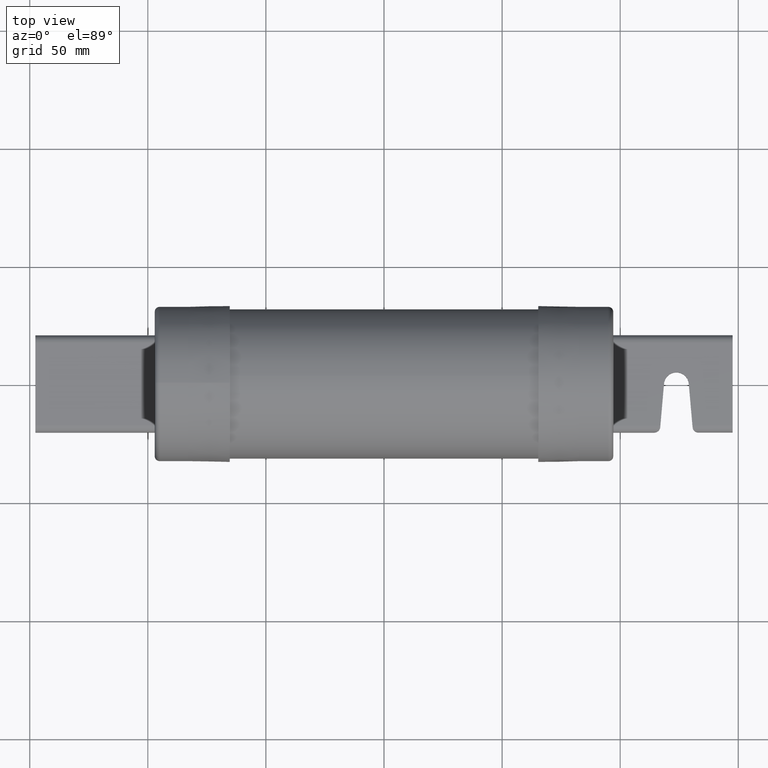
[diagram: clean part render]
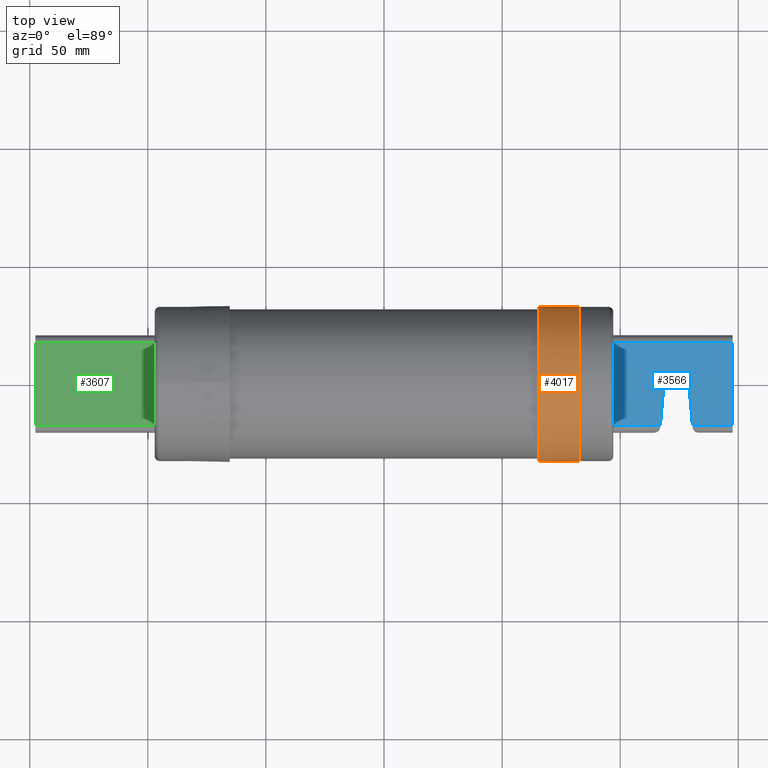
[diagram: same view with three faces highlighted in distinct colors, each labeled with its STEP entity id]
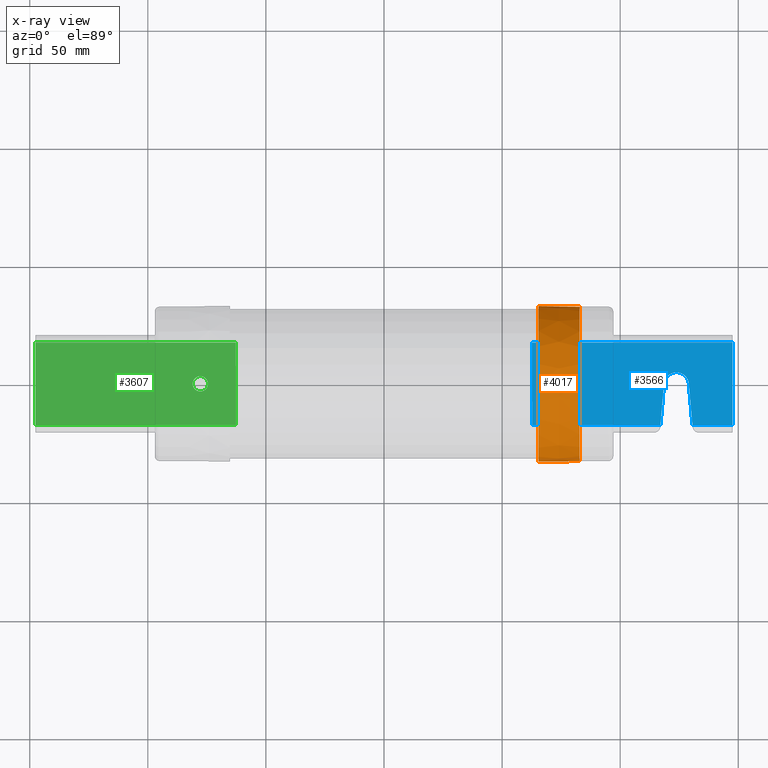
[diagram: x-ray of the same camera — body ghosted, the three highlighted faces saturated]
A machine part, top view with three faces highlighted in distinct colors.
The next image is the same camera in x-ray (body ghosted, the three faces saturated) — at least one of them is partly hidden behind the body in this view.
Their STEP definitions:

[orange] entity #4017 — the highlighted conical surface has half-angle 1.041 deg.
#166 = EDGE_CURVE ( 'NONE', #3166, #3166, #437, .T. ) ;
#247 = CARTESIAN_POINT ( 'NONE',  ( 2.571726816238730800, -8.332876084833582000E-017, -1.304993396181809200 ) ) ;
#257 = ORIENTED_EDGE ( 'NONE', *, *, #4000, .F. ) ;
#352 = DIRECTION ( 'NONE',  ( 0.0000000000000000000, -1.231653667943533000E-016, -1.000000000000000000 ) ) ;
#437 = CIRCLE ( 'NONE', #3404, 1.304993396181809200 ) ;
#585 = EDGE_LOOP ( 'NONE', ( #257 ) ) ;
#704 = EDGE_LOOP ( 'NONE', ( #3730 ) ) ;
#1048 = DIRECTION ( 'NONE',  ( 0.0000000000000000000, -1.231653667943533000E-016, -1.000000000000000000 ) ) ;
#1078 = DIRECTION ( 'NONE',  ( 0.0000000000000000000, 1.231653667943533000E-016, 1.000000000000000000 ) ) ;
#1404 = DIRECTION ( 'NONE',  ( 1.000000000000000000, 2.035898835337764500E-016, -1.361673625696616300E-016 ) ) ;
#1733 = CARTESIAN_POINT ( 'NONE',  ( 2.571726816238730800, 7.740122945660551400E-017, -5.176839385050483000E-017 ) ) ;
#2317 = VERTEX_POINT ( 'NONE', #2453 ) ;
#2416 = DIRECTION ( 'NONE',  ( 1.000000000000000000, 2.035898835337764500E-016, -1.361673625696616300E-016 ) ) ;
#2453 = CARTESIAN_POINT ( 'NONE',  ( 3.258636591880634400, 5.805665405351695700E-017, -1.292509905727287500 ) ) ;
#2494 = CIRCLE ( 'NONE', #4297, 1.292509905727287100 ) ;
#2599 = FACE_BOUND ( 'NONE', #585, .T. ) ;
#2898 = CONICAL_SURFACE ( 'NONE', #4284, 1.304993396181809200, 0.01817140598479098300 ) ;
#3166 = VERTEX_POINT ( 'NONE', #247 ) ;
#3404 = AXIS2_PLACEMENT_3D ( 'NONE', #1733, #1404, #1048 ) ;
#3517 = CARTESIAN_POINT ( 'NONE',  ( 2.571726816238730800, 7.740122945660551400E-017, -5.176839385050483000E-017 ) ) ;
#3570 = FACE_OUTER_BOUND ( 'NONE', #704, .T. ) ;
#3730 = ORIENTED_EDGE ( 'NONE', *, *, #166, .T. ) ;
#3861 = DIRECTION ( 'NONE',  ( -1.000000000000000000, -2.035898835337764500E-016, 1.361673625696616300E-016 ) ) ;
#4000 = EDGE_CURVE ( 'NONE', #2317, #2317, #2494, .T. ) ;
#4017 = ADVANCED_FACE ( 'NONE', ( #2599, #3570 ), #2898, .T. ) ;
#4284 = AXIS2_PLACEMENT_3D ( 'NONE', #3517, #3861, #1078 ) ;
#4297 = AXIS2_PLACEMENT_3D ( 'NONE', #4556, #2416, #352 ) ;
#4556 = CARTESIAN_POINT ( 'NONE',  ( 3.258636591880634400, 2.172491106777532700E-016, -1.453030863229809300E-016 ) ) ;

[blue] entity #3566 — the highlighted planar face has unit normal (-0, 0, -1).
#62 = DIRECTION ( 'NONE',  ( 0.0001632919660351004400, -0.9999999866678668200, -1.201107293654487800E-016 ) ) ;
#159 = EDGE_CURVE ( 'NONE', #493, #902, #983, .T. ) ;
#195 = VECTOR ( 'NONE', #62, 39.37007874015748100 ) ;
#206 = ORIENTED_EDGE ( 'NONE', *, *, #1688, .F. ) ;
#243 = DIRECTION ( 'NONE',  ( -2.391543916886110600E-017, 1.201068257676484800E-016, -1.000000000000000000 ) ) ;
#250 = EDGE_LOOP ( 'NONE', ( #3068, #4549, #206, #1319, #2597, #2192, #4312, #2467 ) ) ;
#363 = CARTESIAN_POINT ( 'NONE',  ( 4.139887640755327800, 0.6881760195668792400, 0.1249999999999996800 ) ) ;
#401 = CIRCLE ( 'NONE', #4170, 0.2079999999999999600 ) ;
#493 = VERTEX_POINT ( 'NONE', #2766 ) ;
#511 = CARTESIAN_POINT ( 'NONE',  ( 5.082002422448581100, -0.01467015002862652600, 0.1249999999999995700 ) ) ;
#513 = EDGE_CURVE ( 'NONE', #1498, #902, #3027, .T. ) ;
#599 = CARTESIAN_POINT ( 'NONE',  ( 4.139999903981976800, 0.0006760287327203378100, 0.1249999999999995800 ) ) ;
#718 = DIRECTION ( 'NONE',  ( -0.9999999866678668200, -0.0001632919660351868500, 2.389582637029529500E-017 ) ) ;
#787 = CARTESIAN_POINT ( 'NONE',  ( 3.062020819725668600, -0.1274999983001525200, 0.1249999999999995400 ) ) ;
#827 = EDGE_LOOP ( 'NONE', ( #1748 ) ) ;
#870 = EDGE_CURVE ( 'NONE', #2679, #3070, #1006, .T. ) ;
#902 = VERTEX_POINT ( 'NONE', #991 ) ;
#940 = DIRECTION ( 'NONE',  ( 0.0001632919660352685500, -0.9999999866678668200, -1.201107293654487800E-016 ) ) ;
#966 = CARTESIAN_POINT ( 'NONE',  ( 3.061999999999999400, 3.490842870810242500E-016, 0.1249999999999995600 ) ) ;
#968 = PLANE ( 'NONE',  #2769 ) ;
#983 = LINE ( 'NONE', #363, #3272 ) ;
#991 = CARTESIAN_POINT ( 'NONE',  ( 2.467887663046654600, 0.6879029953996683700, 0.1249999999999997100 ) ) ;
#1006 = LINE ( 'NONE', #4483, #4033 ) ;
#1009 = CARTESIAN_POINT ( 'NONE',  ( 5.812112161246496100, -0.6866509379328941100, 0.1249999999999994700 ) ) ;
#1121 = EDGE_CURVE ( 'NONE', #2913, #2913, #3124, .T. ) ;
#1180 = CARTESIAN_POINT ( 'NONE',  ( 5.082002422448581100, -0.01467015002862648800, 0.1249999999999995700 ) ) ;
#1227 = DIRECTION ( 'NONE',  ( 0.08699307099488050300, 0.9962089166429296500, 1.175710132819204500E-016 ) ) ;
#1303 = EDGE_CURVE ( 'NONE', #1971, #3379, #401, .T. ) ;
#1319 = ORIENTED_EDGE ( 'NONE', *, *, #159, .T. ) ;
#1362 = FACE_OUTER_BOUND ( 'NONE', #250, .T. ) ;
#1498 = VERTEX_POINT ( 'NONE', #4315 ) ;
#1688 = EDGE_CURVE ( 'NONE', #493, #3070, #3326, .T. ) ;
#1718 = LINE ( 'NONE', #3883, #3695 ) ;
#1748 = ORIENTED_EDGE ( 'NONE', *, *, #1121, .T. ) ;
#1798 = EDGE_CURVE ( 'NONE', #3659, #1971, #3219, .T. ) ;
#1971 = VERTEX_POINT ( 'NONE', #4393 ) ;
#2192 = ORIENTED_EDGE ( 'NONE', *, *, #3061, .T. ) ;
#2419 = CARTESIAN_POINT ( 'NONE',  ( 5.140913300950782800, -0.6867605393158539000, 0.1249999999999994900 ) ) ;
#2467 = ORIENTED_EDGE ( 'NONE', *, *, #1303, .T. ) ;
#2597 = ORIENTED_EDGE ( 'NONE', *, *, #513, .F. ) ;
#2679 = VERTEX_POINT ( 'NONE', #2419 ) ;
#2736 = LINE ( 'NONE', #511, #2742 ) ;
#2742 = VECTOR ( 'NONE', #2854, 39.37007874015747400 ) ;
#2766 = CARTESIAN_POINT ( 'NONE',  ( 5.811887618464001400, 0.6884490437340899900, 0.1249999999999996400 ) ) ;
#2769 = AXIS2_PLACEMENT_3D ( 'NONE', #599, #243, #940 ) ;
#2854 = DIRECTION ( 'NONE',  ( 0.08731841217649165300, -0.9961804529777607000, -1.217363302736648000E-016 ) ) ;
#2913 = VERTEX_POINT ( 'NONE', #787 ) ;
#3027 = LINE ( 'NONE', #4107, #4396 ) ;
#3061 = EDGE_CURVE ( 'NONE', #1498, #3659, #1718, .T. ) ;
#3068 = ORIENTED_EDGE ( 'NONE', *, *, #3251, .T. ) ;
#3070 = VERTEX_POINT ( 'NONE', #1009 ) ;
#3124 = CIRCLE ( 'NONE', #3210, 0.1274999999999998400 ) ;
#3195 = DIRECTION ( 'NONE',  ( 0.9999999866678668200, 0.0001632919660351460100, -2.389582637029530400E-017 ) ) ;
#3210 = AXIS2_PLACEMENT_3D ( 'NONE', #966, #4136, #4504 ) ;
#3219 = LINE ( 'NONE', #4383, #3815 ) ;
#3251 = EDGE_CURVE ( 'NONE', #3379, #2679, #2736, .T. ) ;
#3272 = VECTOR ( 'NONE', #718, 39.37007874015748100 ) ;
#3319 = DIRECTION ( 'NONE',  ( -0.0001632919660352685500, 0.9999999866678668200, 1.201107293654487800E-016 ) ) ;
#3326 = LINE ( 'NONE', #4008, #195 ) ;
#3379 = VERTEX_POINT ( 'NONE', #1180 ) ;
#3566 = ADVANCED_FACE ( 'NONE', ( #4173, #1362 ), #968, .F. ) ;
#3649 = DIRECTION ( 'NONE',  ( 0.0001632919660340611500, -0.9999999866678669400, -8.208677865577715400E-017 ) ) ;
#3659 = VERTEX_POINT ( 'NONE', #4389 ) ;
#3695 = VECTOR ( 'NONE', #3195, 39.37007874015748100 ) ;
#3815 = VECTOR ( 'NONE', #1227, 39.37007874015748100 ) ;
#3883 = CARTESIAN_POINT ( 'NONE',  ( 4.140112183537823400, -0.6869239621001050900, 0.1249999999999995000 ) ) ;
#3999 = DIRECTION ( 'NONE',  ( -2.391543916886110300E-017, 1.201068257676469800E-016, -1.000000000000000000 ) ) ;
#4008 = CARTESIAN_POINT ( 'NONE',  ( 5.812132556413054400, -0.8115509362677106900, 0.1249999999999994600 ) ) ;
#4033 = VECTOR ( 'NONE', #4129, 39.37007874015748100 ) ;
#4107 = CARTESIAN_POINT ( 'NONE',  ( 2.468132600995707600, -0.8120969846021323100, 0.1249999999999995100 ) ) ;
#4129 = DIRECTION ( 'NONE',  ( 0.9999999866678668200, 0.0001632919660351460100, -2.389582637029530400E-017 ) ) ;
#4136 = DIRECTION ( 'NONE',  ( -2.391543916886110300E-017, 1.201068257676469800E-016, -1.000000000000000000 ) ) ;
#4170 = AXIS2_PLACEMENT_3D ( 'NONE', #4356, #3999, #3649 ) ;
#4173 = FACE_BOUND ( 'NONE', #827, .T. ) ;
#4312 = ORIENTED_EDGE ( 'NONE', *, *, #1798, .T. ) ;
#4315 = CARTESIAN_POINT ( 'NONE',  ( 2.468112205829149800, -0.6871969862673158500, 0.1249999999999995400 ) ) ;
#4356 = CARTESIAN_POINT ( 'NONE',  ( 4.874002425221664900, -0.01470411475756186300, 0.1249999999999995700 ) ) ;
#4383 = CARTESIAN_POINT ( 'NONE',  ( 4.596404107791147300, -0.8117494549588980500, 0.1249999999999994700 ) ) ;
#4389 = CARTESIAN_POINT ( 'NONE',  ( 4.607311046553292000, -0.6868476722782168600, 0.1249999999999994900 ) ) ;
#4393 = CARTESIAN_POINT ( 'NONE',  ( 4.666002427994748700, -0.01473807948649720300, 0.1249999999999995700 ) ) ;
#4396 = VECTOR ( 'NONE', #3319, 39.37007874015748100 ) ;
#4483 = CARTESIAN_POINT ( 'NONE',  ( 4.140112183537823400, -0.6869239621001050900, 0.1249999999999995000 ) ) ;
#4504 = DIRECTION ( 'NONE',  ( 0.0001632919660354828700, -0.9999999866678668200, -1.339141173364836700E-016 ) ) ;
#4549 = ORIENTED_EDGE ( 'NONE', *, *, #870, .T. ) ;

[green] entity #3607 — the highlighted planar face has unit normal (-0, 0, -1).
#273 = CIRCLE ( 'NONE', #2240, 0.1274999999999998400 ) ;
#331 = ORIENTED_EDGE ( 'NONE', *, *, #4192, .T. ) ;
#371 = CARTESIAN_POINT ( 'NONE',  ( -3.062020819725668600, 0.1274999983001527900, 0.1250000000000002200 ) ) ;
#463 = EDGE_CURVE ( 'NONE', #1321, #1791, #1067, .T. ) ;
#466 = LINE ( 'NONE', #3391, #3961 ) ;
#723 = DIRECTION ( 'NONE',  ( -0.0001632919660352061000, 0.9999999866678668200, 1.201107293654601400E-016 ) ) ;
#777 = FACE_OUTER_BOUND ( 'NONE', #4351, .T. ) ;
#791 = VECTOR ( 'NONE', #1289, 39.37007874015748100 ) ;
#804 = DIRECTION ( 'NONE',  ( -0.0001632919660354828700, 0.9999999866678668200, 1.339141173364836700E-016 ) ) ;
#1067 = LINE ( 'NONE', #4514, #3370 ) ;
#1094 = EDGE_CURVE ( 'NONE', #1321, #1342, #1957, .T. ) ;
#1189 = EDGE_LOOP ( 'NONE', ( #331 ) ) ;
#1289 = DIRECTION ( 'NONE',  ( 0.0001632919660352061000, -0.9999999866678668200, -1.201107293654601400E-016 ) ) ;
#1305 = CARTESIAN_POINT ( 'NONE',  ( -5.811887618464001400, -0.6884490437340894400, 0.1250000000000001100 ) ) ;
#1314 = AXIS2_PLACEMENT_3D ( 'NONE', #1904, #2235, #4032 ) ;
#1321 = VERTEX_POINT ( 'NONE', #2197 ) ;
#1342 = VERTEX_POINT ( 'NONE', #2929 ) ;
#1653 = ORIENTED_EDGE ( 'NONE', *, *, #2830, .F. ) ;
#1788 = DIRECTION ( 'NONE',  ( -2.391543916884178800E-017, 1.201068257676477200E-016, -1.000000000000000000 ) ) ;
#1791 = VERTEX_POINT ( 'NONE', #4127 ) ;
#1904 = CARTESIAN_POINT ( 'NONE',  ( -4.139999903981976800, -0.0006760287327199788300, 0.1250000000000001700 ) ) ;
#1908 = FACE_BOUND ( 'NONE', #1189, .T. ) ;
#1957 = LINE ( 'NONE', #1962, #791 ) ;
#1962 = CARTESIAN_POINT ( 'NONE',  ( -2.468132600995707600, 0.8120969846021326400, 0.1250000000000002500 ) ) ;
#2025 = EDGE_CURVE ( 'NONE', #2068, #1342, #466, .T. ) ;
#2059 = DIRECTION ( 'NONE',  ( -0.9999999866678668200, -0.0001632919660350835600, 2.389582637028080300E-017 ) ) ;
#2068 = VERTEX_POINT ( 'NONE', #1305 ) ;
#2191 = VERTEX_POINT ( 'NONE', #371 ) ;
#2197 = CARTESIAN_POINT ( 'NONE',  ( -2.468112189499952700, 0.6870969862686493500, 0.1250000000000002200 ) ) ;
#2235 = DIRECTION ( 'NONE',  ( -2.391543916884178800E-017, 1.201068257676598500E-016, -1.000000000000000000 ) ) ;
#2240 = AXIS2_PLACEMENT_3D ( 'NONE', #3069, #1788, #804 ) ;
#2385 = ORIENTED_EDGE ( 'NONE', *, *, #2025, .T. ) ;
#2459 = CARTESIAN_POINT ( 'NONE',  ( -5.812132556413054400, 0.8115509362677111300, 0.1250000000000003100 ) ) ;
#2600 = LINE ( 'NONE', #2459, #4269 ) ;
#2627 = PLANE ( 'NONE',  #1314 ) ;
#2711 = DIRECTION ( 'NONE',  ( 0.9999999866678668200, 0.0001632919660350835600, -2.389582637028080300E-017 ) ) ;
#2830 = EDGE_CURVE ( 'NONE', #2068, #1791, #2600, .T. ) ;
#2929 = CARTESIAN_POINT ( 'NONE',  ( -2.467887663046654600, -0.6879029953996679300, 0.1250000000000000600 ) ) ;
#3069 = CARTESIAN_POINT ( 'NONE',  ( -3.061999999999999400, -5.735813658572427400E-017, 0.1250000000000001900 ) ) ;
#3279 = ORIENTED_EDGE ( 'NONE', *, *, #1094, .F. ) ;
#3370 = VECTOR ( 'NONE', #2059, 39.37007874015748100 ) ;
#3391 = CARTESIAN_POINT ( 'NONE',  ( -4.139887640755327800, -0.6881760195668785700, 0.1250000000000000800 ) ) ;
#3607 = ADVANCED_FACE ( 'NONE', ( #1908, #777 ), #2627, .F. ) ;
#3961 = VECTOR ( 'NONE', #2711, 39.37007874015748100 ) ;
#3993 = ORIENTED_EDGE ( 'NONE', *, *, #463, .T. ) ;
#4032 = DIRECTION ( 'NONE',  ( -0.0001632919660352061000, 0.9999999866678668200, 1.201107293654601400E-016 ) ) ;
#4127 = CARTESIAN_POINT ( 'NONE',  ( -5.812112144917299400, 0.6865509379342281700, 0.1250000000000002800 ) ) ;
#4192 = EDGE_CURVE ( 'NONE', #2191, #2191, #273, .T. ) ;
#4269 = VECTOR ( 'NONE', #723, 39.37007874015748100 ) ;
#4351 = EDGE_LOOP ( 'NONE', ( #1653, #2385, #3279, #3993 ) ) ;
#4514 = CARTESIAN_POINT ( 'NONE',  ( -4.140112167208625800, 0.6868239621014387000, 0.1250000000000002500 ) ) ;